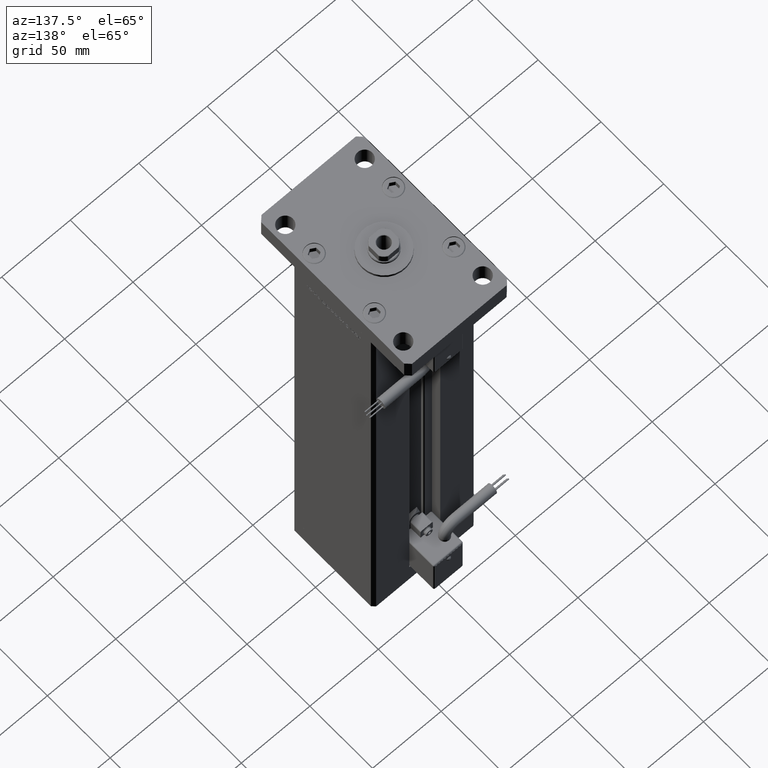
[diagram: clean part render]
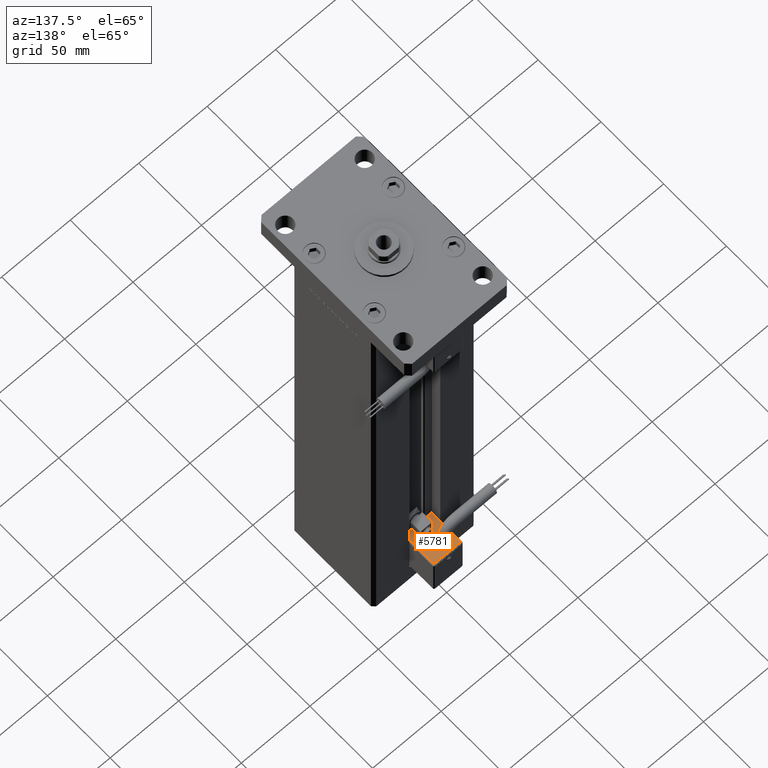
[diagram: same view with one face highlighted and labeled with its STEP entity id]
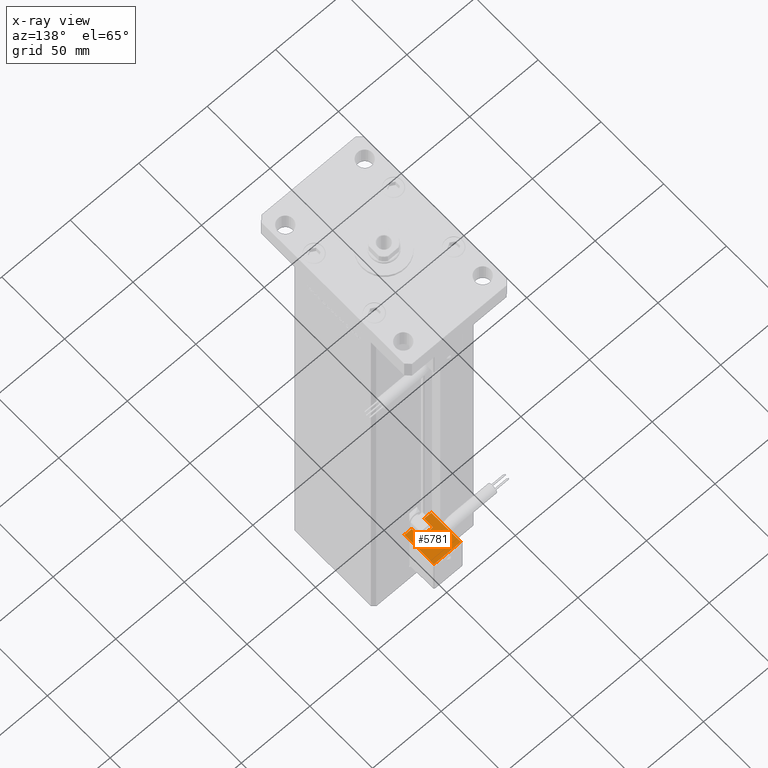
[diagram: x-ray of the same camera — body ghosted, the highlighted face saturated]
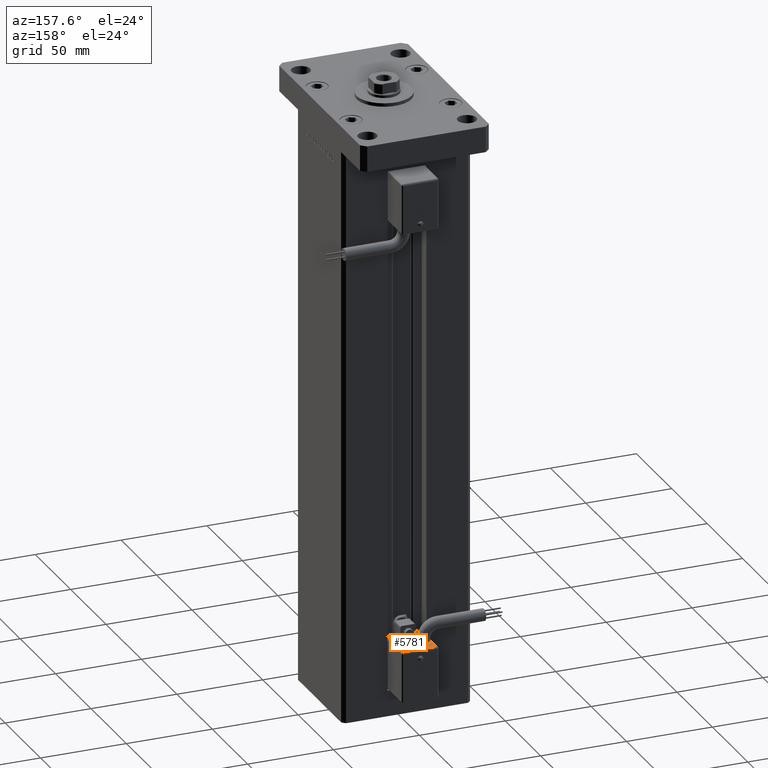
[diagram: same view with one face highlighted and labeled with its STEP entity id]
A machine part, auxiliary view. The second image highlights one B-rep face of the part: STEP entity #5781.
The next image is the same camera in x-ray: the body ghosted, the highlighted face saturated — about 0% of this face is hidden behind the body in this view.
A second angle (auxiliary view) of the same face is appended — the face is thin or edge-on in the first view.
In plain terms, the highlighted planar face has unit normal (-0, -0, -1).
Its self-contained STEP definition (entity closure, byte-faithful):
#260 = AXIS2_PLACEMENT_3D ( 'NONE', #40229, #23053, #4718 ) ;
#341 = LINE ( 'NONE', #9792, #47392 ) ;
#1879 = ORIENTED_EDGE ( 'NONE', *, *, #51020, .F. ) ;
#4718 = DIRECTION ( 'NONE',  ( 0.000000000000000000, -1.000000000000000000, 0.000000000000000000 ) ) ;
#5292 = LINE ( 'NONE', #44785, #5584 ) ;
#5519 = VERTEX_POINT ( 'NONE', #50894 ) ;
#5566 = DIRECTION ( 'NONE',  ( 1.000000000000000000, 0.000000000000000000, 2.220446049250000002E-16 ) ) ;
#5584 = VECTOR ( 'NONE', #53380, 1000.000000000000000 ) ;
#5781 = ADVANCED_FACE ( 'NONE', ( #39993, #53434 ), #48858, .F. ) ;
#6176 = EDGE_CURVE ( 'NONE', #51824, #7418, #31620, .T. ) ;
#6215 = VERTEX_POINT ( 'NONE', #36206 ) ;
#6915 = EDGE_CURVE ( 'NONE', #24791, #26623, #35924, .T. ) ;
#7418 = VERTEX_POINT ( 'NONE', #43202 ) ;
#7455 = CARTESIAN_POINT ( 'NONE',  ( 4.500000000000000000, 34.00000000000000000, -55.00000000000000000 ) ) ;
#9792 = CARTESIAN_POINT ( 'NONE',  ( 4.500000000000000000, 34.00000000000000000, -55.00000000000000000 ) ) ;
#11069 = VERTEX_POINT ( 'NONE', #23870 ) ;
#11909 = EDGE_CURVE ( 'NONE', #7418, #24791, #15275, .T. ) ;
#13331 = VECTOR ( 'NONE', #31272, 1000.000000000000000 ) ;
#13823 = CARTESIAN_POINT ( 'NONE',  ( 10.80000000000000071, 27.00000000000000000, -55.00000000000000000 ) ) ;
#13838 = CARTESIAN_POINT ( 'NONE',  ( -4.500000000000000000, 34.00000000000000000, -55.00000000000000000 ) ) ;
#14590 = EDGE_CURVE ( 'NONE', #19781, #33864, #42107, .T. ) ;
#14924 = ORIENTED_EDGE ( 'NONE', *, *, #36380, .T. ) ;
#15275 = LINE ( 'NONE', #15547, #35326 ) ;
#15547 = CARTESIAN_POINT ( 'NONE',  ( -9.799999999999998934, 51.50000000000000000, -55.00000000000000000 ) ) ;
#16813 = CIRCLE ( 'NONE', #20496, 3.500000000000003109 ) ;
#17037 = EDGE_CURVE ( 'NONE', #33864, #51824, #5292, .T. ) ;
#17253 = VERTEX_POINT ( 'NONE', #31553 ) ;
#17511 = ORIENTED_EDGE ( 'NONE', *, *, #54379, .F. ) ;
#19283 = DIRECTION ( 'NONE',  ( -3.108624468950000014E-32, 1.000000000000000000, 1.400000000000000069E-16 ) ) ;
#19781 = VERTEX_POINT ( 'NONE', #27758 ) ;
#20496 = AXIS2_PLACEMENT_3D ( 'NONE', #29405, #25121, #42562 ) ;
#20784 = ORIENTED_EDGE ( 'NONE', *, *, #21029, .T. ) ;
#20794 = DIRECTION ( 'NONE',  ( 3.108624468950000014E-32, -1.000000000000000000, -1.400000000000000069E-16 ) ) ;
#21029 = EDGE_CURVE ( 'NONE', #26623, #11069, #34228, .T. ) ;
#21415 = AXIS2_PLACEMENT_3D ( 'NONE', #31101, #36269, #52871 ) ;
#21634 = CARTESIAN_POINT ( 'NONE',  ( 9.799999999999998934, 26.00000000000000000, -55.00000000000000000 ) ) ;
#22054 = VECTOR ( 'NONE', #20794, 1000.000000000000000 ) ;
#22689 = DIRECTION ( 'NONE',  ( 2.664535259099999699E-32, -1.000000000000000000, -1.200000000000000024E-16 ) ) ;
#22695 = ORIENTED_EDGE ( 'NONE', *, *, #6176, .T. ) ;
#23028 = CARTESIAN_POINT ( 'NONE',  ( 10.80000000000000071, 27.00000000000000000, -55.00000000000000000 ) ) ;
#23053 = DIRECTION ( 'NONE',  ( 2.220446049250000002E-16, 1.400000000000000069E-16, -1.000000000000000000 ) ) ;
#23870 = CARTESIAN_POINT ( 'NONE',  ( 9.799999999999998934, 27.00000000000000000, -55.00000000000000000 ) ) ;
#24791 = VERTEX_POINT ( 'NONE', #55018 ) ;
#25083 = CIRCLE ( 'NONE', #260, 3.500000000000003109 ) ;
#25121 = DIRECTION ( 'NONE',  ( 2.220446049250000002E-16, 1.400000000000000069E-16, -1.000000000000000000 ) ) ;
#26623 = VERTEX_POINT ( 'NONE', #48516 ) ;
#27758 = CARTESIAN_POINT ( 'NONE',  ( 4.500000000000000000, 34.00000000000000000, -55.00000000000000000 ) ) ;
#29405 = CARTESIAN_POINT ( 'NONE',  ( 5.799999999999999822, 42.00000000000000000, -55.00000000000000000 ) ) ;
#30928 = ORIENTED_EDGE ( 'NONE', *, *, #14590, .T. ) ;
#31101 = CARTESIAN_POINT ( 'NONE',  ( 10.80000000000000071, 51.50000000000000000, -55.00000000000000000 ) ) ;
#31272 = DIRECTION ( 'NONE',  ( -1.000000000000000000, 0.000000000000000000, -2.220446049250000002E-16 ) ) ;
#31553 = CARTESIAN_POINT ( 'NONE',  ( 5.799999999999999822, 38.50000000000000000, -55.00000000000000000 ) ) ;
#31620 = LINE ( 'NONE', #23028, #43379 ) ;
#33864 = VERTEX_POINT ( 'NONE', #13838 ) ;
#34228 = LINE ( 'NONE', #21634, #22054 ) ;
#35326 = VECTOR ( 'NONE', #19283, 1000.000000000000000 ) ;
#35924 = LINE ( 'NONE', #52816, #44295 ) ;
#36206 = CARTESIAN_POINT ( 'NONE',  ( 5.799999999999999822, 45.50000000000000711, -55.00000000000000000 ) ) ;
#36269 = DIRECTION ( 'NONE',  ( 3.108624468950000014E-32, -1.400000000000000069E-16, 1.000000000000000000 ) ) ;
#36380 = EDGE_CURVE ( 'NONE', #11069, #5519, #53041, .T. ) ;
#38020 = EDGE_LOOP ( 'NONE', ( #1879, #17511 ) ) ;
#38974 = VECTOR ( 'NONE', #50423, 1000.000000000000000 ) ;
#39993 = FACE_OUTER_BOUND ( 'NONE', #50629, .T. ) ;
#40229 = CARTESIAN_POINT ( 'NONE',  ( 5.799999999999999822, 42.00000000000000000, -55.00000000000000000 ) ) ;
#42107 = LINE ( 'NONE', #7455, #38974 ) ;
#42562 = DIRECTION ( 'NONE',  ( 0.000000000000000000, -1.000000000000000000, 0.000000000000000000 ) ) ;
#43202 = CARTESIAN_POINT ( 'NONE',  ( -9.799999999999998934, 27.00000000000000000, -55.00000000000000000 ) ) ;
#43379 = VECTOR ( 'NONE', #44195, 1000.000000000000000 ) ;
#43716 = EDGE_CURVE ( 'NONE', #19781, #5519, #341, .T. ) ;
#44195 = DIRECTION ( 'NONE',  ( -1.000000000000000000, 0.000000000000000000, -2.220446049250000002E-16 ) ) ;
#44295 = VECTOR ( 'NONE', #5566, 1000.000000000000000 ) ;
#44785 = CARTESIAN_POINT ( 'NONE',  ( -4.500000000000000000, 34.00000000000000000, -55.00000000000000000 ) ) ;
#47392 = VECTOR ( 'NONE', #22689, 1000.000000000000000 ) ;
#47665 = CARTESIAN_POINT ( 'NONE',  ( -4.500000000000000000, 27.00000000000000000, -55.00000000000000000 ) ) ;
#48516 = CARTESIAN_POINT ( 'NONE',  ( 9.799999999999998934, 50.50000000000000000, -55.00000000000000000 ) ) ;
#48858 = PLANE ( 'NONE',  #21415 ) ;
#50423 = DIRECTION ( 'NONE',  ( -1.000000000000000000, 0.000000000000000000, -2.220446049250000002E-16 ) ) ;
#50629 = EDGE_LOOP ( 'NONE', ( #53115, #22695, #55400, #53526, #20784, #14924, #52590, #30928 ) ) ;
#50894 = CARTESIAN_POINT ( 'NONE',  ( 4.500000000000000000, 27.00000000000000000, -55.00000000000000000 ) ) ;
#51020 = EDGE_CURVE ( 'NONE', #17253, #6215, #25083, .T. ) ;
#51824 = VERTEX_POINT ( 'NONE', #47665 ) ;
#52590 = ORIENTED_EDGE ( 'NONE', *, *, #43716, .F. ) ;
#52816 = CARTESIAN_POINT ( 'NONE',  ( 10.80000000000000071, 50.50000000000000000, -55.00000000000000000 ) ) ;
#52871 = DIRECTION ( 'NONE',  ( 1.000000000000000000, 2.220446049250000002E-16, 0.000000000000000000 ) ) ;
#53041 = LINE ( 'NONE', #13823, #13331 ) ;
#53115 = ORIENTED_EDGE ( 'NONE', *, *, #17037, .T. ) ;
#53380 = DIRECTION ( 'NONE',  ( 2.664535259099999699E-32, -1.000000000000000000, -1.200000000000000024E-16 ) ) ;
#53434 = FACE_BOUND ( 'NONE', #38020, .T. ) ;
#53526 = ORIENTED_EDGE ( 'NONE', *, *, #6915, .T. ) ;
#54379 = EDGE_CURVE ( 'NONE', #6215, #17253, #16813, .T. ) ;
#55018 = CARTESIAN_POINT ( 'NONE',  ( -9.799999999999998934, 50.50000000000000000, -55.00000000000000000 ) ) ;
#55400 = ORIENTED_EDGE ( 'NONE', *, *, #11909, .T. ) ;